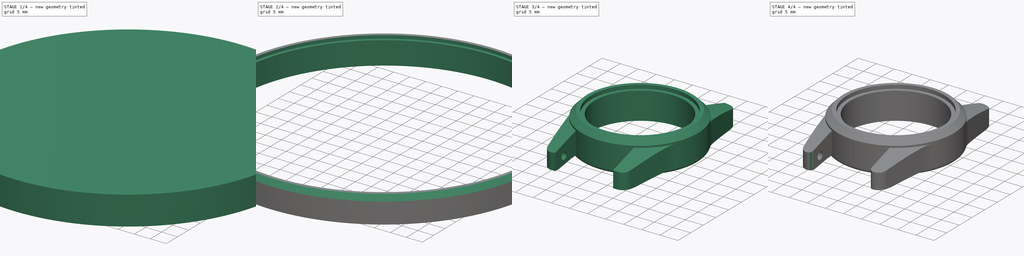
[diagram: build sequence overview — one tinted view per stage of 4, left to right]
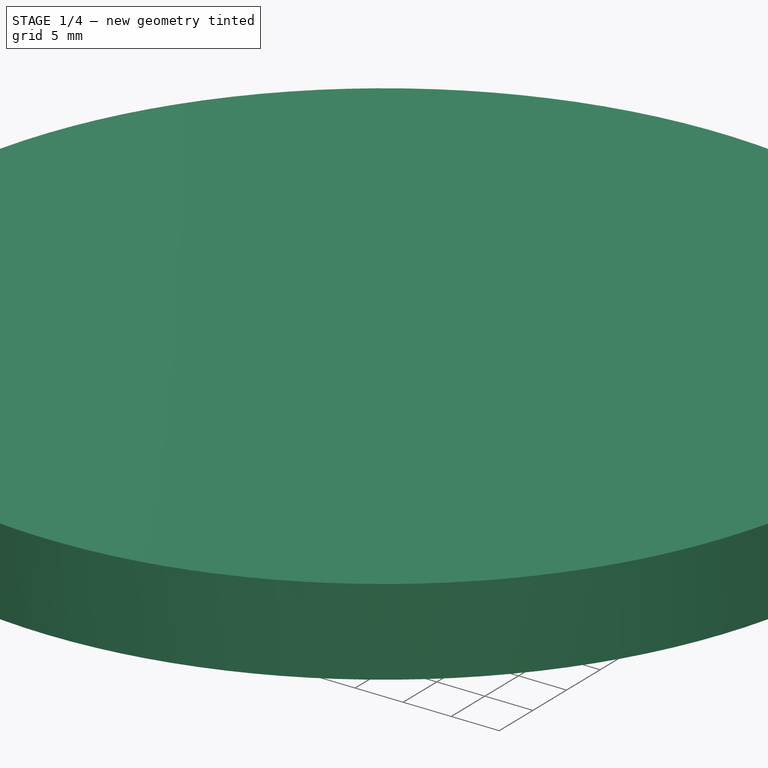
[diagram: stage 1 of 4 — iso view after this stage's code; geometry added in this stage tinted green]
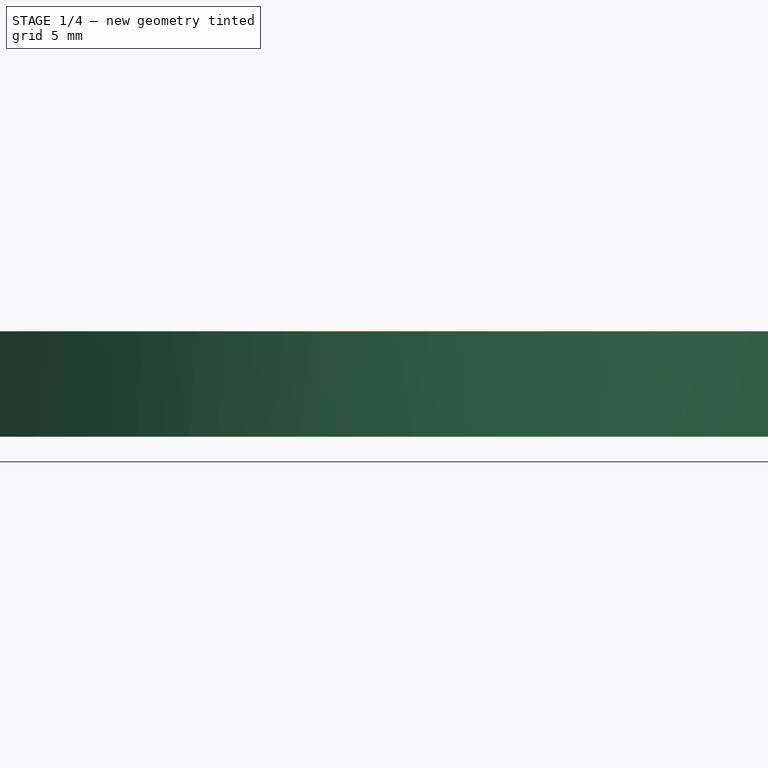
[diagram: stage 1 of 4 — front view after this stage's code; geometry added in this stage tinted green]
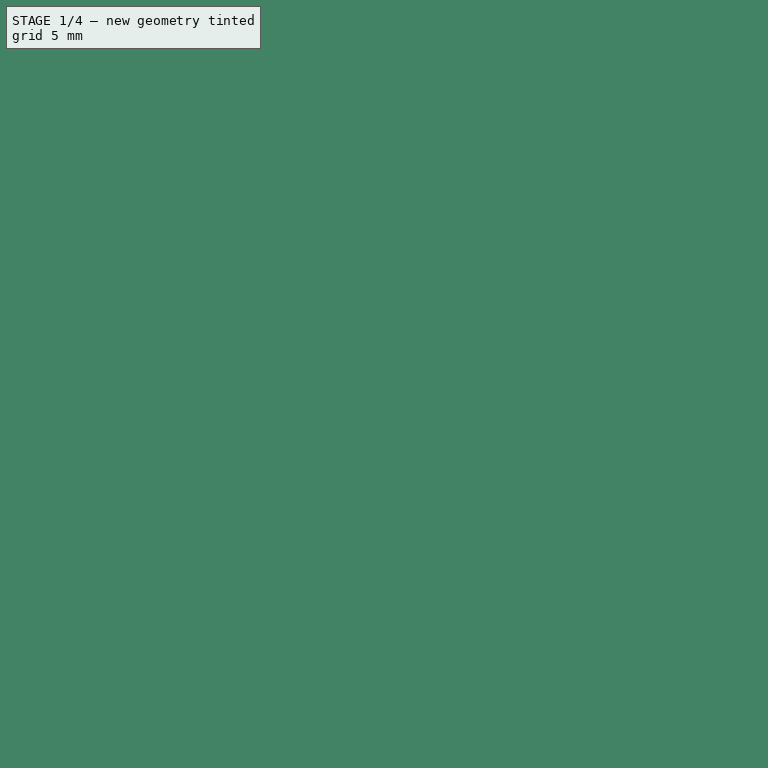
[diagram: stage 1 of 4 — top view after this stage's code; geometry added in this stage tinted green]
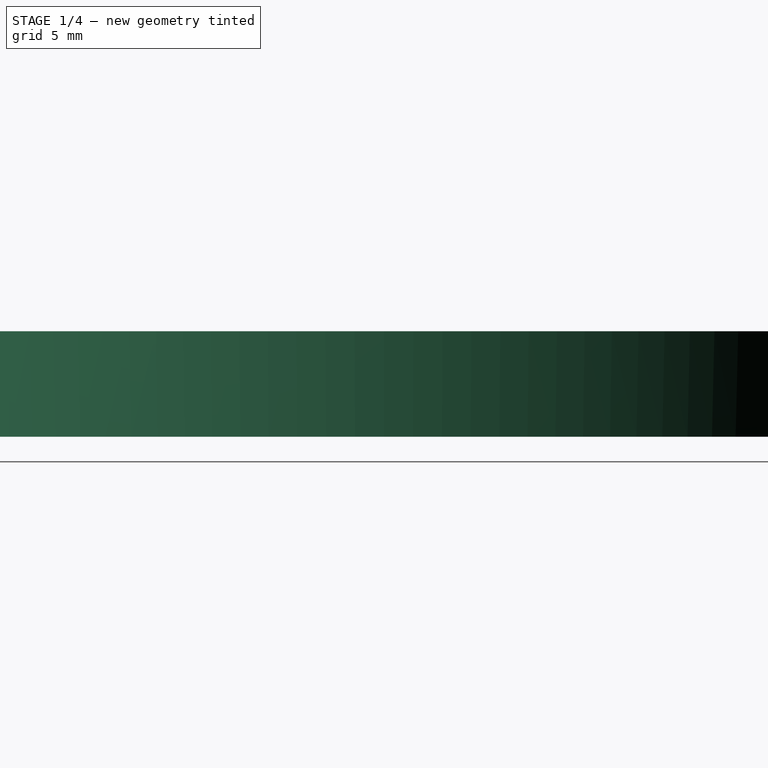
[diagram: stage 1 of 4 — right view after this stage's code; geometry added in this stage tinted green]
FCSTD DOCUMENT  (FreeCAD 1.0R39285 (Git))
Label: watch case
License: All rights reserved
LicenseURL: https://en.wikipedia.org/wiki/All_rights_reserved
objects: Sketcher::SketchObject×4, PartDesign::Fillet×3, PartDesign::Pad×2, PartDesign::Mirrored×2, App::VarSet×1, PartDesign::Pocket×1, PartDesign::Groove×1, PartDesign::Chamfer×1, PartDesign::Body×1
note: 37 computed .brp shape members not serialized (recipe doc carries the construction recipe); baked Part::Feature solids carry a one-line shape summary decoded from their .brp

FEATURE [App::VarSet] VarSet  label="varset"
  bracelet_width = 16
  case_chamfer = 1.5
  case_fillet = 0.9
  case_height = 50
  case_thickness = 9
  case_width = 100
  circle_dia = 20
  lug_thickness = 7
  lugs_fillet = 15
  lugs_hole_diameter = 2
  lugs_holes_depth = 20
  lugs_holes_distance = 37
FEATURE [Sketcher::SketchObject] Sketch
  ArcFitTolerance = 1e-06
  AttachmentSupport = -> [XY_Plane]
  FullyConstrained = true
  MakeInternals = false
  MapMode = 5
  expr: Constraints[48] = <<varset>>.case_height
  expr: Constraints[49] = <<varset>>.bracelet_width
  expr: Constraints[51] = <<varset>>.case_width
  sketch-geometry (18):
    g0: Circle [constr] CenterX=0 CenterY=0 CenterZ=0 NormalX=0 NormalY=0 NormalZ=1 AngleXU=0 Radius=50
    g1: Circle [constr] CenterX=0 CenterY=0 CenterZ=0 NormalX=0 NormalY=0 NormalZ=1 AngleXU=0 Radius=45
    g2: LineSegment StartX=8 StartY=25 StartZ=0 EndX=8 EndY=44.2832 EndZ=0
    g3: LineSegment StartX=8 StartY=44.2832 StartZ=0 EndX=-8 EndY=44.2832 EndZ=0
    g4: LineSegment StartX=-8 StartY=44.2832 StartZ=0 EndX=-8 EndY=25 EndZ=0
    g5: LineSegment StartX=-8 StartY=25 StartZ=0 EndX=-11 EndY=25 EndZ=0
    g6: LineSegment StartX=-11 StartY=25 StartZ=0 EndX=-23.2164 EndY=44.2832 EndZ=0
    g7: LineSegment StartX=-23.2164 StartY=44.2832 StartZ=0 EndX=-23.2164 EndY=-44.2832 EndZ=0
    g8: LineSegment StartX=-23.2164 StartY=-44.2832 StartZ=0 EndX=-11 EndY=-25 EndZ=0
    g9: LineSegment StartX=-11 StartY=-25 StartZ=0 EndX=-8 EndY=-25 EndZ=0
    g10: LineSegment StartX=-8 StartY=-25 StartZ=0 EndX=-8 EndY=-44.2832 EndZ=0
    g11: LineSegment StartX=-8 StartY=-44.2832 StartZ=0 EndX=8 EndY=-44.2832 EndZ=0
    g12: LineSegment StartX=8 StartY=-44.2832 StartZ=0 EndX=8 EndY=-25 EndZ=0
    g13: LineSegment StartX=8 StartY=-25 StartZ=0 EndX=11 EndY=-25 EndZ=0
    g14: LineSegment StartX=11 StartY=-25 StartZ=0 EndX=23.2164 EndY=-44.2832 EndZ=0
    g15: LineSegment StartX=23.2164 StartY=-44.2832 StartZ=0 EndX=23.2164 EndY=44.2832 EndZ=0
    g16: LineSegment StartX=23.2164 StartY=44.2832 StartZ=0 EndX=11 EndY=25 EndZ=0
    g17: LineSegment StartX=11 StartY=25 StartZ=0 EndX=8 EndY=25 EndZ=0
  constraints (52):
    c: Coincident(g0,g-1)
    c: Coincident(g1,g0)
    c: Distance(g1,g0) = 5
    c: PointOnObject(g2,g1)
    c: Vertical(g2)
    c: Coincident(g2,g3)
    c: PointOnObject(g3,g1)
    c: Coincident(g3,g4)
    c: Vertical(g4)
    c: Coincident(g4,g5)
    c: Horizontal(g5)
    c: Coincident(g5,g6)
    c: PointOnObject(g6,g0)
    c: Coincident(g6,g7)
    c: PointOnObject(g7,g0)
    c: Vertical(g7)
    c: Coincident(g7,g8)
    c: Coincident(g8,g9)
    c: Coincident(g9,g10)
    c: PointOnObject(g10,g1)
    c: Coincident(g10,g11)
    c: PointOnObject(g11,g1)
    c: Coincident(g11,g12)
    c: Vertical(g12)
    c: Coincident(g12,g13)
    c: Horizontal(g13)
    c: Coincident(g13,g14)
    c: PointOnObject(g14,g0)
    c: Coincident(g14,g15)
    c: PointOnObject(g15,g0)
    c: Vertical(g15)
    c: Coincident(g15,g16)
    c: Coincident(g16,g17)
    c: Coincident(g17,g2)
    c: Horizontal(g17)
    c: Horizontal(g9)
    c: Vertical(g10)
    c: Equal(g3,g11)
    c: Equal(g5,g17)
    c: Equal(g5,g9)
    c: Equal(g5,g13)
    c: Horizontal(g6,g3)
    c: Horizontal(g2,g15)
    c: Horizontal(g7,g10)
    c: Equal(g4,g2)
    c: Equal(g2,g10)
    c: Equal(g10,g12)
    c: Equal(g7,g15)
    c: Distance(g16,g13) = 50
    c: Distance(g12,g10) = 16
    c: DistanceX(g5,g5) = 3
    c: Diameter(g0) = 100
FEATURE [PartDesign::Pad] Pad
  Direction = (0,0,1)
  Length = 7
  Length2 = 10
  Profile = -> Sketch
  ReferenceAxis = -> Sketch [N_Axis]
  Refine = true
  Suppressed = false
  Type = 0
  expr: Length = <<varset>>.lug_thickness
FEATURE [Sketcher::SketchObject] Sketch001
  ArcFitTolerance = 1e-06
  AttachmentSupport = -> [XY_Plane]
  ExternalGeometry = -> [Pad]
  FullyConstrained = true
  MakeInternals = false
  MapMode = 5
  sketch-geometry (1):
    g0: Circle CenterX=0 CenterY=0 CenterZ=0 NormalX=0 NormalY=0 NormalZ=1 AngleXU=0 Radius=50
  constraints (2):
    c: Coincident(g0,g-1)
    c: PointOnObject(g-3,g0)
FEATURE [PartDesign::Pad] Pad001
  BaseFeature = -> Pad
  Direction = (0,0,1)
  Length = 9
  Length2 = 10
  Profile = -> Sketch001
  ReferenceAxis = -> Sketch001 [N_Axis]
  Refine = true
  Suppressed = false
  Type = 0
  expr: Length = <<varset>>.case_thickness
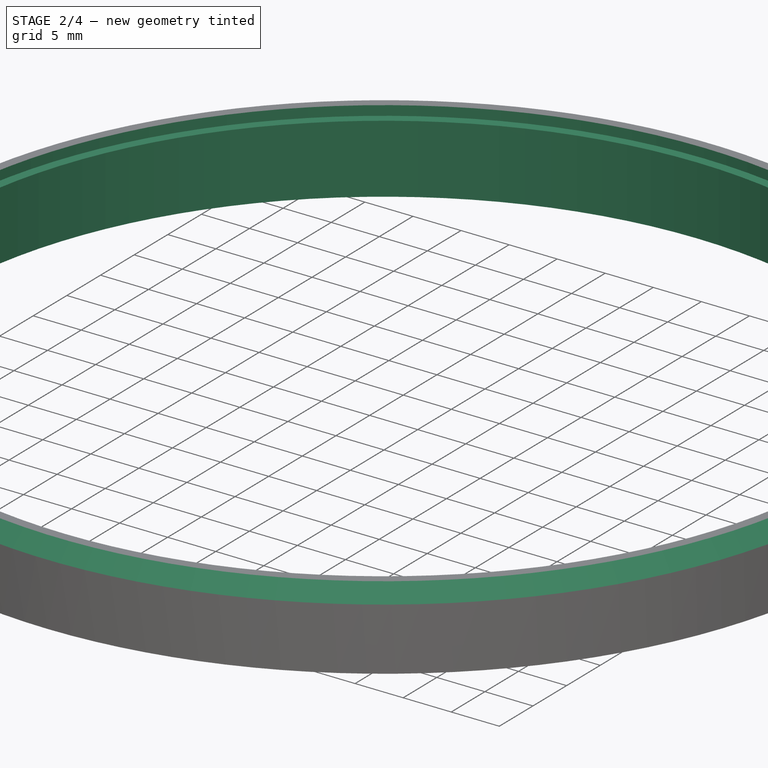
[diagram: stage 2 of 4 — iso view after this stage's code; geometry added in this stage tinted green]
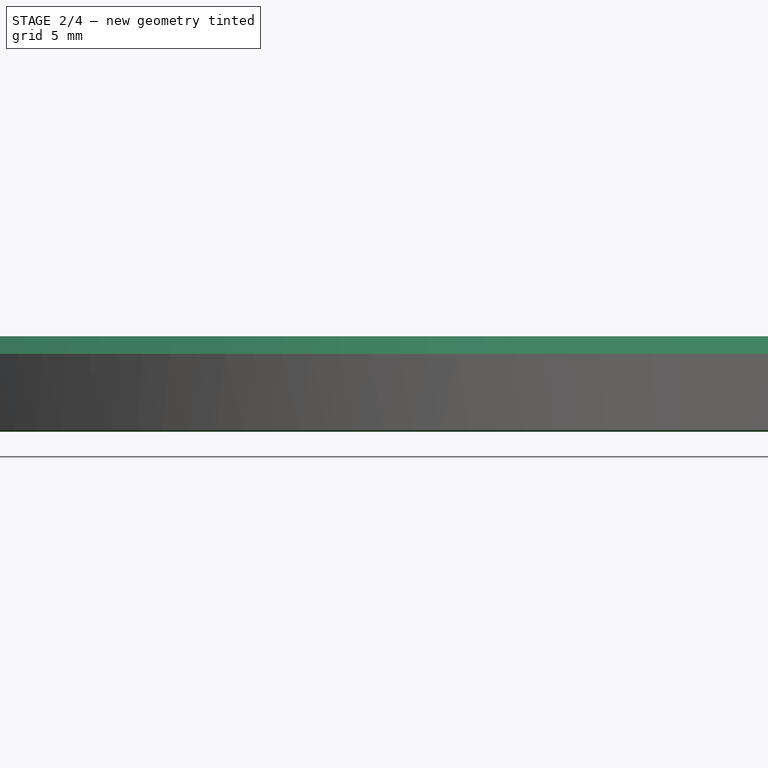
[diagram: stage 2 of 4 — front view after this stage's code; geometry added in this stage tinted green]
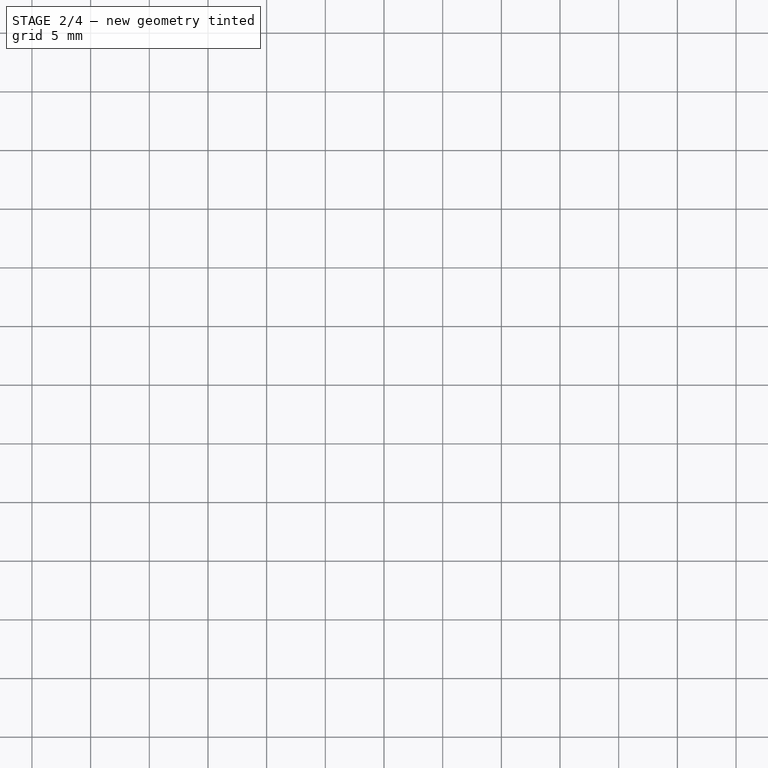
[diagram: stage 2 of 4 — top view after this stage's code; geometry added in this stage tinted green]
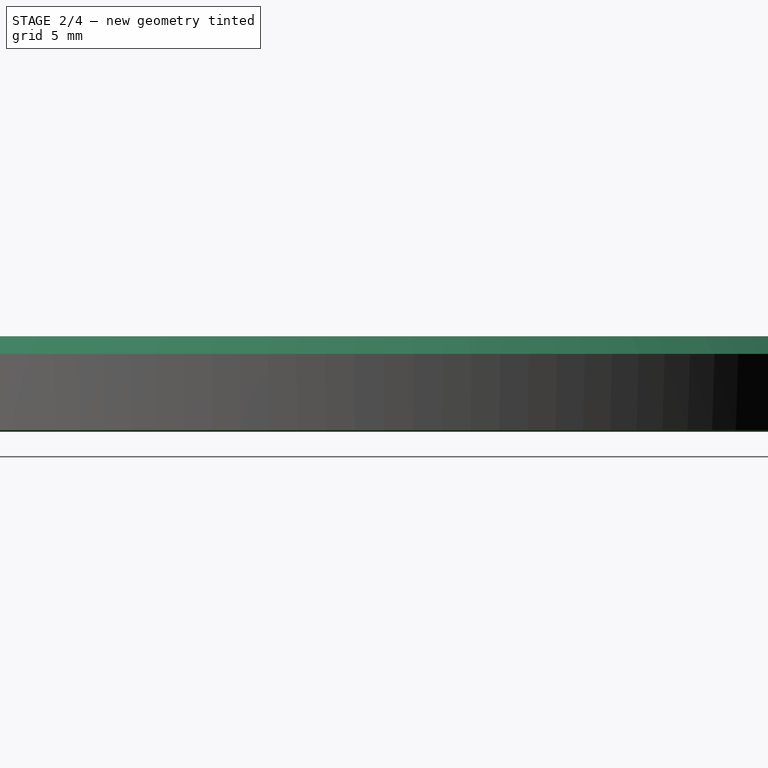
[diagram: stage 2 of 4 — right view after this stage's code; geometry added in this stage tinted green]
FEATURE [Sketcher::SketchObject] Sketch002
  ArcFitTolerance = 1e-06
  AttachmentSupport = -> [YZ_Plane]
  FullyConstrained = true
  MakeInternals = false
  MapMode = 5
  Placement = pos=(0,0,0) rot=(0.57735,0.57735,0.57735;2.0944rad)
  expr: Constraints[1] = VarSet.lugs_hole_diameter
  expr: Constraints[4] = VarSet.lugs_holes_distance
  sketch-geometry (2):
    g0: Circle CenterX=-18.5 CenterY=2.5 CenterZ=0 NormalX=0 NormalY=0 NormalZ=1 AngleXU=0 Radius=1
    g1: Circle CenterX=18.5 CenterY=2.5 CenterZ=0 NormalX=0 NormalY=0 NormalZ=1 AngleXU=0 Radius=1
  constraints (5):
    c: Distance(g0,g-1) = 2.5
    c: Diameter(g0) = 2
    c: Diameter(g1) = 2
    c: Symmetric(g0,g1,g-2)
    c: DistanceX(g0,g1) = 37
FEATURE [PartDesign::Pocket] Pocket
  BaseFeature = -> Pad001
  Direction = (-1,0,0)
  Length = 20
  Length2 = 5
  Midplane = true
  Profile = -> Sketch002
  ReferenceAxis = -> Sketch002 [N_Axis]
  Refine = true
  Suppressed = false
  Type = 0
  expr: Length = <<varset>>.lugs_holes_depth
FEATURE [Sketcher::SketchObject] Sketch003
  ArcFitTolerance = 1e-06
  AttachmentSupport = -> [YZ_Plane]
  ExternalGeometry = -> [Pocket]
  FullyConstrained = true
  MakeInternals = false
  MapMode = 5
  Placement = pos=(0,0,0) rot=(0.57735,0.57735,0.57735;2.0944rad)
  sketch-geometry (15):
    g0: LineSegment StartX=-47.5 StartY=9 StartZ=0 EndX=-47.5 EndY=8 EndZ=0
    g1: LineSegment StartX=-47.5 StartY=8 StartZ=0 EndX=-46.5 EndY=8 EndZ=0
    g2: LineSegment StartX=-46.5 StartY=8 StartZ=0 EndX=-46.5 EndY=-1 EndZ=0
    g3: LineSegment StartX=-46.5 StartY=-1 StartZ=0 EndX=-47.5 EndY=-1 EndZ=0
    g4: LineSegment StartX=-47.5 StartY=-1 StartZ=0 EndX=-47.5 EndY=0 EndZ=0
    g5: LineSegment StartX=-47.5 StartY=0 StartZ=0 EndX=0 EndY=0 EndZ=0
    g6: LineSegment StartX=0 StartY=0 StartZ=0 EndX=0 EndY=9 EndZ=0
    g7: LineSegment StartX=-47.5 StartY=9 StartZ=0 EndX=0 EndY=9 EndZ=0
    g8: LineSegment StartX=-50 StartY=7 StartZ=0 EndX=-117 EndY=12.36 EndZ=0
    g9: LineSegment StartX=-117 StartY=12.36 StartZ=0 EndX=-117 EndY=7 EndZ=0
    g10: LineSegment StartX=-117 StartY=7 StartZ=0 EndX=-50 EndY=7 EndZ=0
    g11: GeomPoint X=-25 Y=5 Z=0
    g12: LineSegment StartX=-25 StartY=0 StartZ=0 EndX=-50 EndY=1 EndZ=0
    g13: LineSegment StartX=-50 StartY=1 StartZ=0 EndX=-50 EndY=0 EndZ=0
    g14: LineSegment StartX=-50 StartY=0 StartZ=0 EndX=-25 EndY=0 EndZ=0
  constraints (42):
    c: PointOnObject(g0,g-3)
    c: Vertical(g0)
    c: Coincident(g0,g1)
    c: Coincident(g1,g2)
    c: Coincident(g2,g3)
    c: Coincident(g3,g4)
    c: PointOnObject(g4,g-1)
    c: Coincident(g4,g5)
    c: Coincident(g5,g-1)
    c: Coincident(g5,g6)
    c: PointOnObject(g6,g-2)
    c: Coincident(g7,g0)
    c: Coincident(g7,g6)
    c: Horizontal(g7)
    c: Equal(g1,g3)
    c: Equal(g0,g4)
    c: Horizontal(g1)
    c: Horizontal(g3)
    c: Vertical(g4)
    c: Vertical(g2)
    c: DistanceX(g-3,g0) = 2.5
    c: DistanceY(g0,g0) = 1
    c: Distance(g2,g0) = 1
    c: PointOnObject(g8,g-4)
    c: Coincident(g8,g9)
    c: Vertical(g9)
    c: Coincident(g9,g10)
    c: Coincident(g10,g8)
    c: Horizontal(g10)
    c: Vertical(g8,g-3)
    c: PointOnObject(g11,g-5)
    c: PointOnObject(g11,g8)
    c: Distance(g11,g-1) = 5
    c: DistanceX(g10,g10) = 67
    c: Coincident(g-5,g12)
    c: Coincident(g12,g13)
    c: PointOnObject(g13,g-1)
    c: Vertical(g13)
    c: Coincident(g13,g14)
    c: Coincident(g14,g12)
    c: Vertical(g12,g8)
    c: Equal(g13,g4)
FEATURE [PartDesign::Groove] Groove
  Angle = 360
  Angle2 = 60
  Axis = (0,0,1)
  Base = (0,0,0)
  BaseFeature = -> Pocket
  Profile = -> Sketch003
  ReferenceAxis = -> Sketch003 [V_Axis]
  Refine = true
  Reversed = true
  Suppressed = false
  Type = 0
FEATURE [PartDesign::Chamfer] Chamfer
  Angle = 45
  Base = -> Groove [Edge1]
  BaseFeature = -> Groove
  ChamferType = 0
  FlipDirection = false
  Refine = true
  Size = 1.5
  Size2 = 1
  SupportTransform = false
  Suppressed = false
  UseAllEdges = false
  expr: Size = <<varset>>.case_chamfer
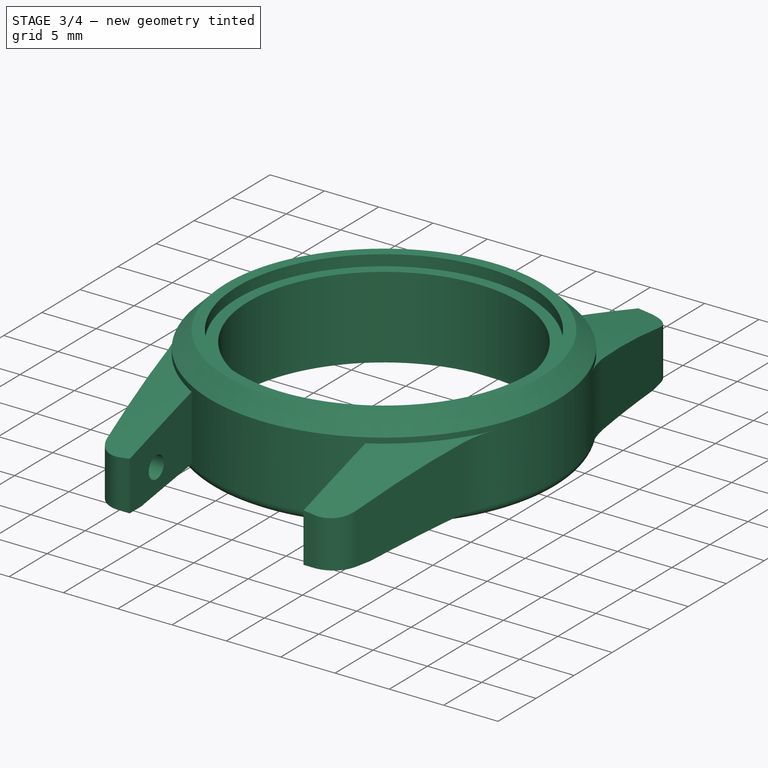
[diagram: stage 3 of 4 — iso view after this stage's code; geometry added in this stage tinted green]
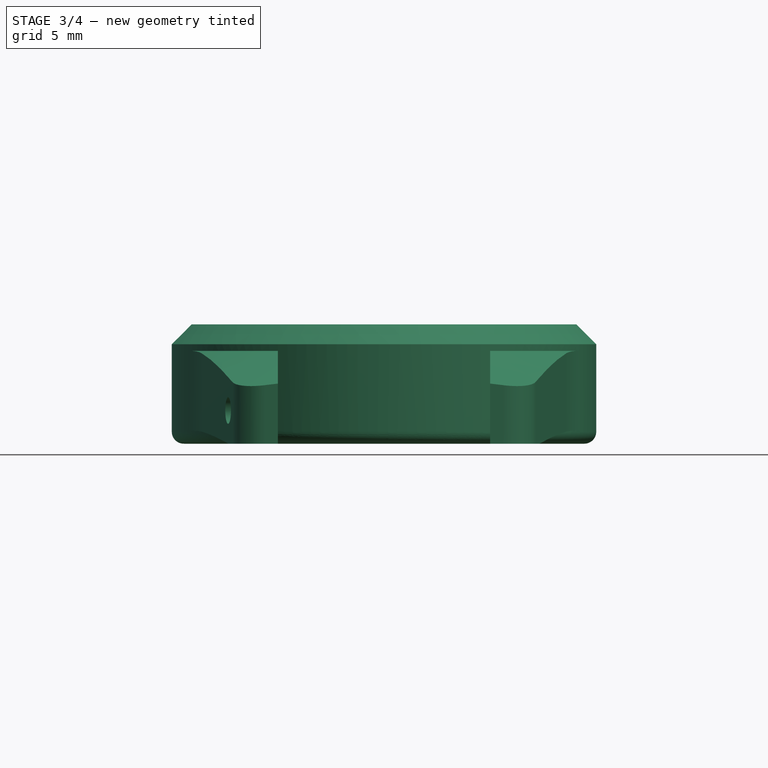
[diagram: stage 3 of 4 — front view after this stage's code; geometry added in this stage tinted green]
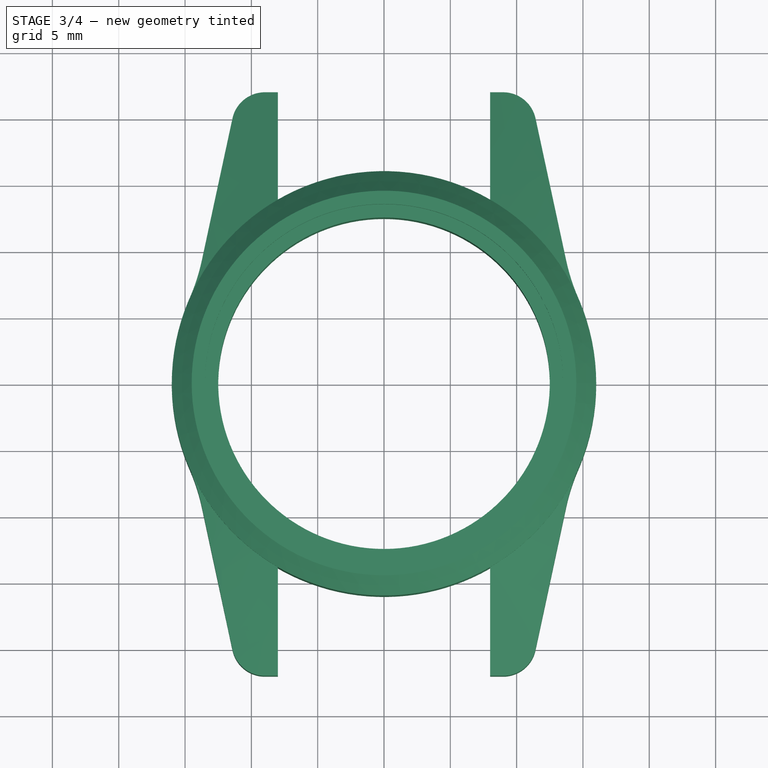
[diagram: stage 3 of 4 — top view after this stage's code; geometry added in this stage tinted green]
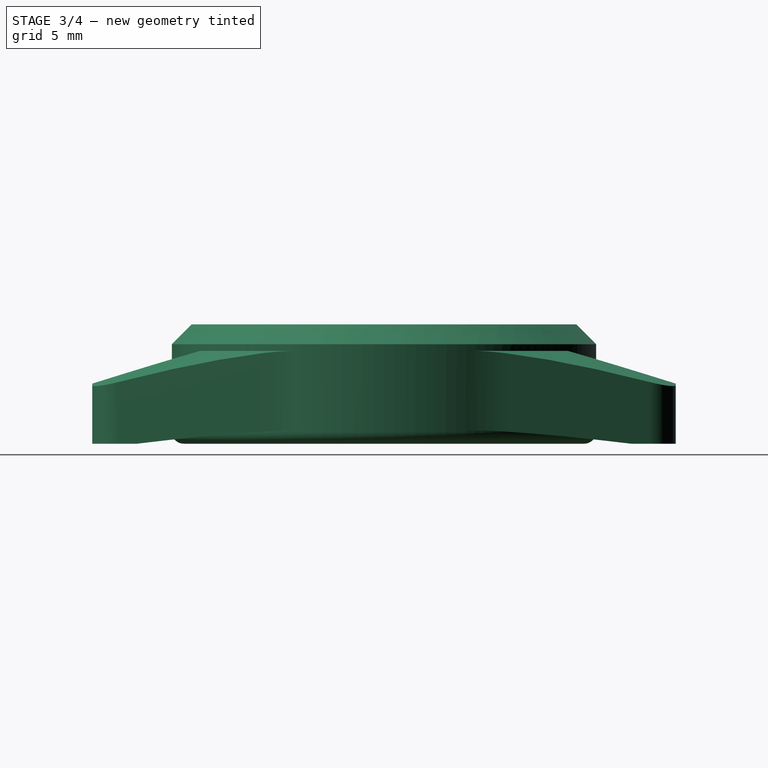
[diagram: stage 3 of 4 — right view after this stage's code; geometry added in this stage tinted green]
FEATURE [PartDesign::Fillet] Fillet
  Base = -> Chamfer [?Edge65,?Edge50,?Edge78,?Edge45]
  BaseFeature = -> Chamfer
  Radius = 0.9
  Refine = true
  SupportTransform = false
  Suppressed = false
  UseAllEdges = false
  expr: Radius = <<varset>>.case_fillet
FEATURE [PartDesign::Mirrored] Mirrored
  BaseFeature = -> Fillet
  MirrorPlane = -> YZ_Plane
  Refine = true
  Suppressed = false
  TransformMode = 0
FEATURE [PartDesign::Fillet] Fillet001
  Base = -> Mirrored [Edge108,Edge111,Edge121,Edge116]
  BaseFeature = -> Mirrored
  Radius = 2.5
  Refine = true
  SupportTransform = false
  Suppressed = false
  UseAllEdges = false
  expr: Radius = 2.5 mm
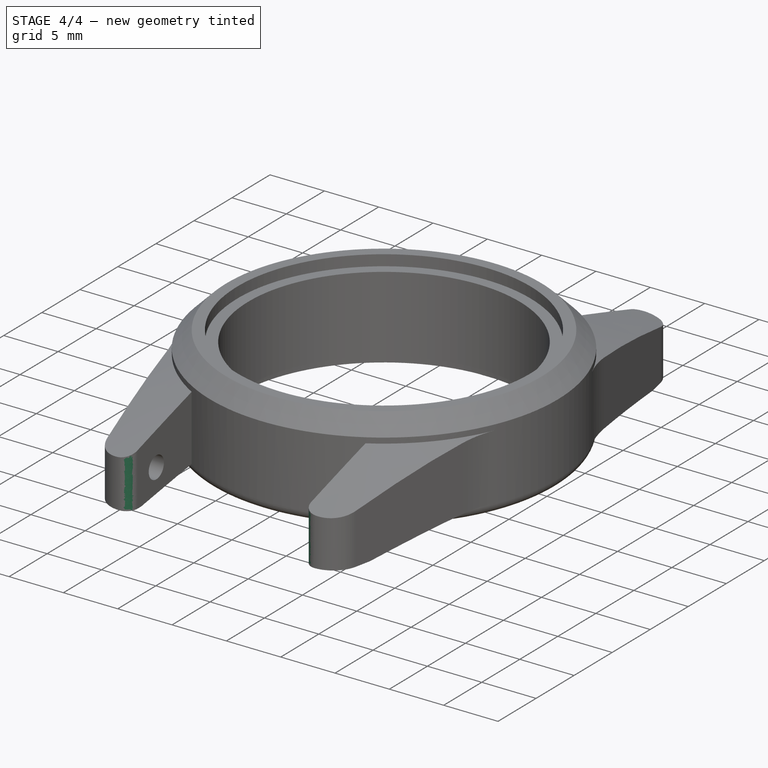
[diagram: stage 4 of 4 — iso view after this stage's code; geometry added in this stage tinted green]
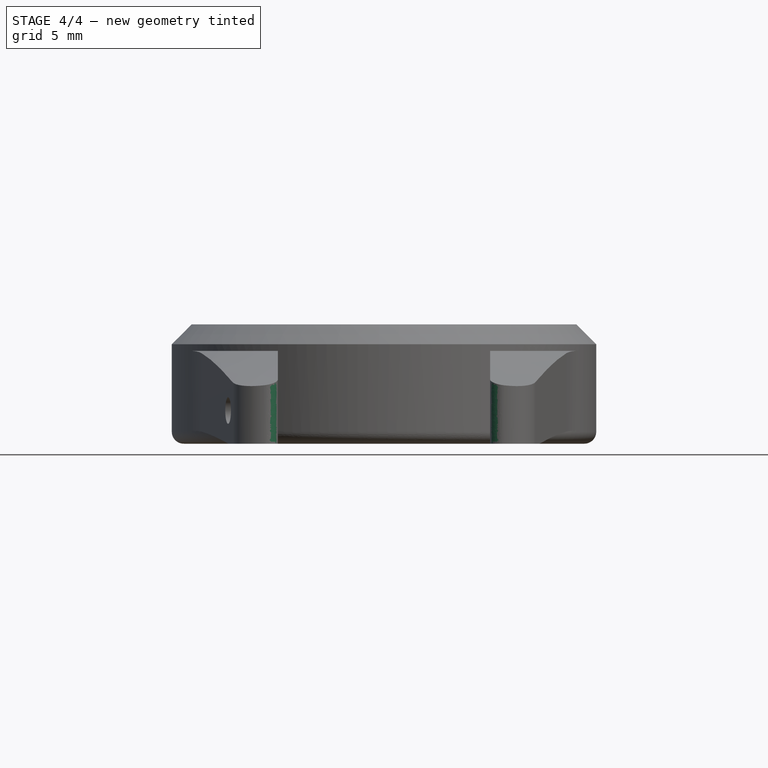
[diagram: stage 4 of 4 — front view after this stage's code; geometry added in this stage tinted green]
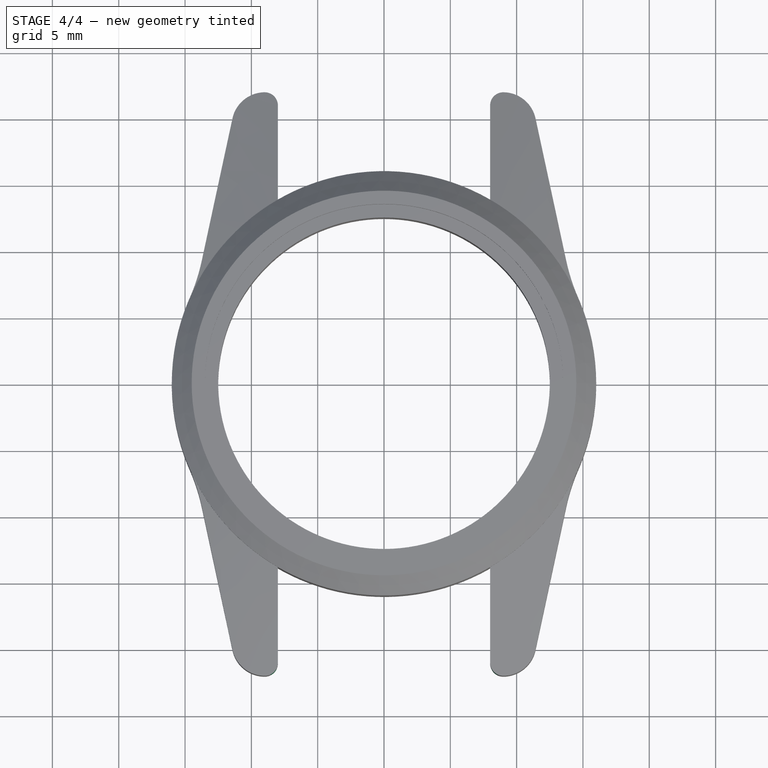
[diagram: stage 4 of 4 — top view after this stage's code; geometry added in this stage tinted green]
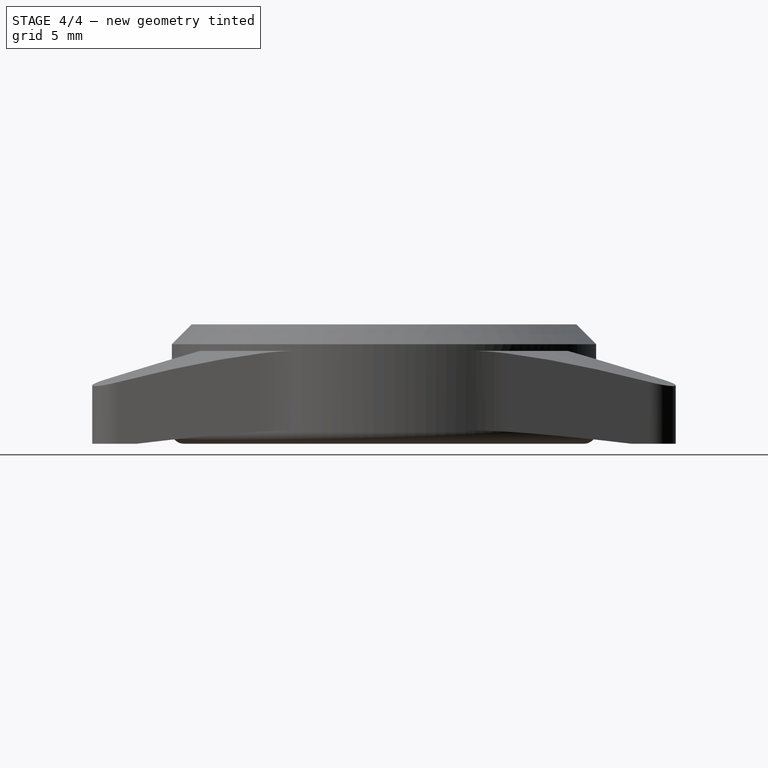
[diagram: stage 4 of 4 — right view after this stage's code; geometry added in this stage tinted green]
FEATURE [PartDesign::Fillet] Fillet002
  Base = -> Fillet001 [Edge77,Edge16,Edge107,Edge93]
  BaseFeature = -> Fillet001
  Radius = 1
  Refine = true
  SupportTransform = false
  Suppressed = false
  UseAllEdges = false
FEATURE [PartDesign::Mirrored] Mirrored001
  BaseFeature = -> Fillet002
  MirrorPlane = -> YZ_Plane
  Originals = -> [Fillet002]
  Refine = true
  Suppressed = false
  TransformMode = 0
FEATURE [PartDesign::Body] Body
  AllowCompound = false
  Group = -> [Sketch,Pad,Sketch001,Pad001,Sketch002,Pocket,Sketch003,Groove,Chamfer,Fillet,Mirrored,Fillet001,Fillet002,Mirrored001]
  Origin = -> Origin
  Tip = -> Mirrored001
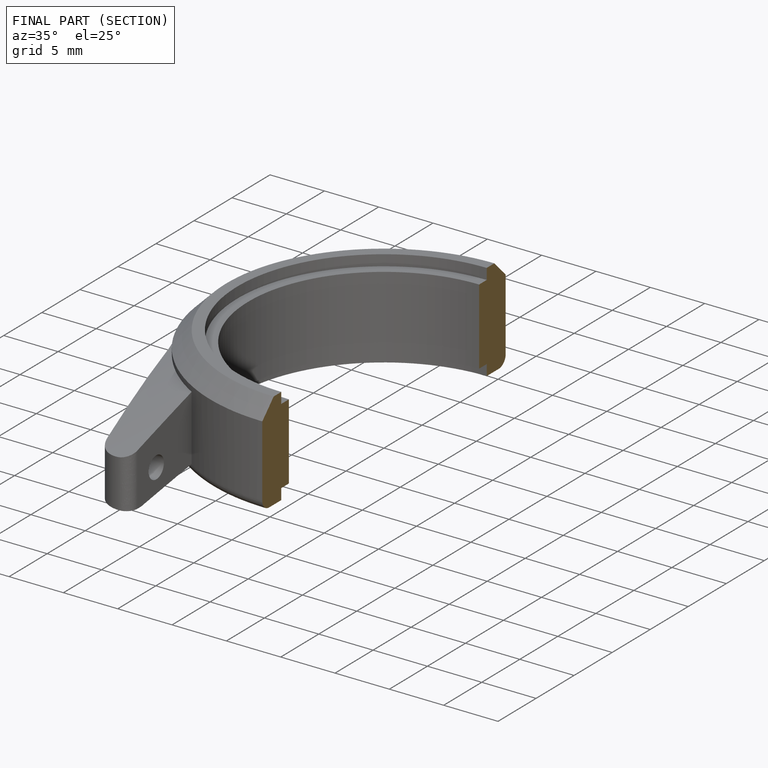
[diagram: finished part — half-section view (interior)]
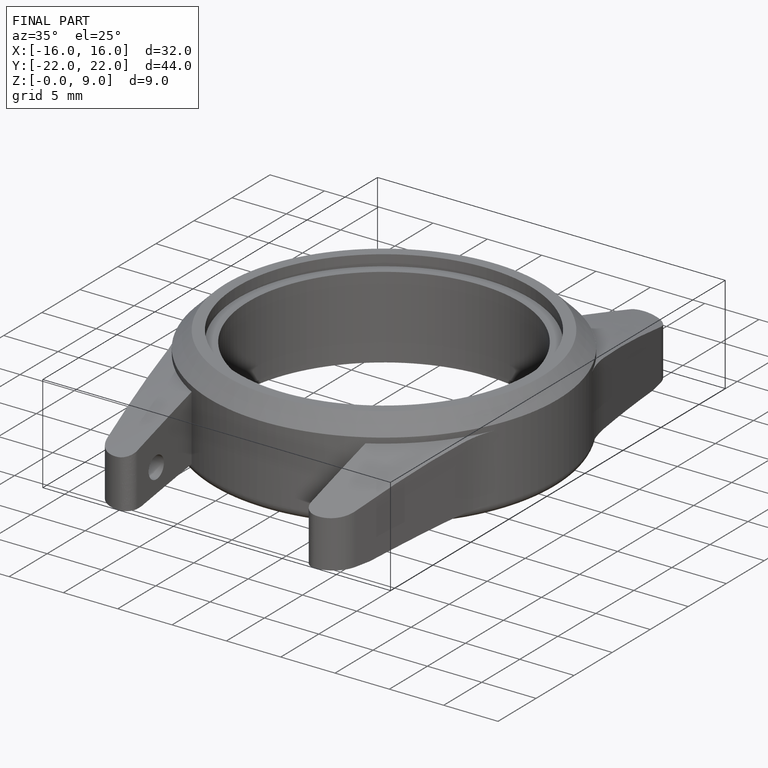
[diagram: finished part — iso view with bounding-box wireframe]
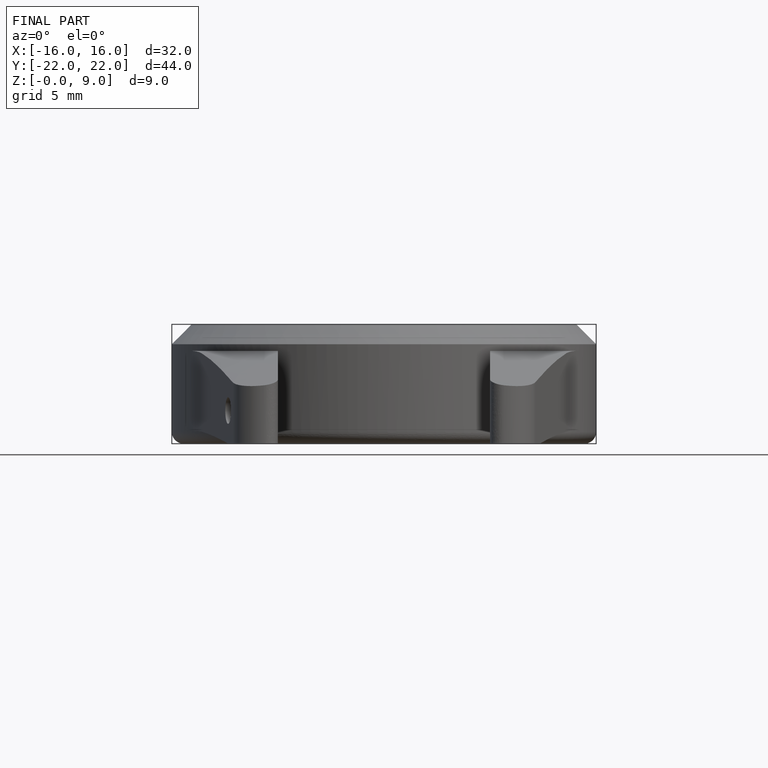
[diagram: finished part — front view with bounding-box wireframe]
